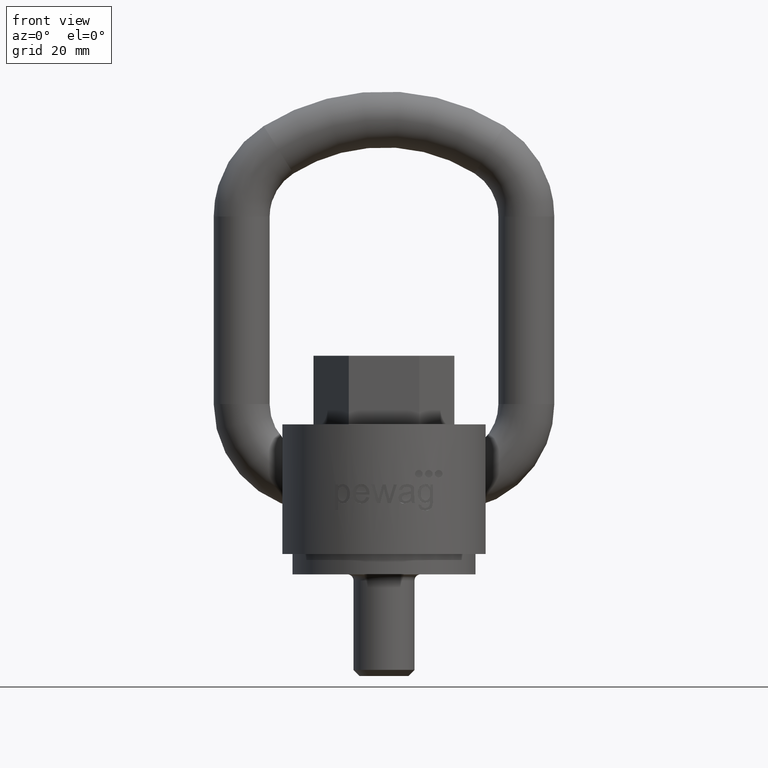
[diagram: clean part render]
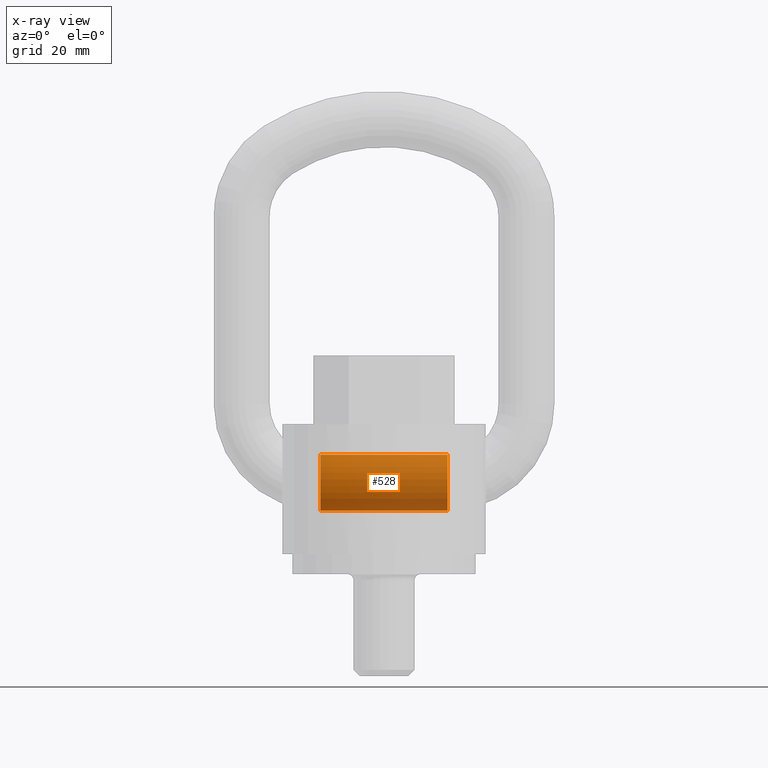
[diagram: x-ray — body ghosted, one internal face saturated and labeled with its STEP entity id]
A machine part, front view, then the same camera in x-ray: the body is ghosted and one INTERNAL B-rep face — a face not visible from any outside direction — is saturated and labeled: STEP entity #528.
In plain terms, the highlighted cylindrical surface (bore or boss wall) has radius 5.5 mm, axis along (1, 0, 0).
Its self-contained STEP definition (entity closure, byte-faithful):
#528=ADVANCED_FACE('',(#611,#612),#550,.T.);
#550=CYLINDRICAL_SURFACE('',#2538,5.5);
#611=FACE_BOUND('',#773,.T.);
#612=FACE_BOUND('',#774,.T.);
#773=EDGE_LOOP('',(#1714));
#774=EDGE_LOOP('',(#1715));
#1112=CIRCLE('',#2534,5.5);
#1114=CIRCLE('',#2537,5.5);
#1714=ORIENTED_EDGE('',*,*,#2236,.T.);
#1715=ORIENTED_EDGE('',*,*,#2234,.F.);
#1930=VERTEX_POINT('',#5179);
#1932=VERTEX_POINT('',#5184);
#2234=EDGE_CURVE('',#1930,#1930,#1112,.T.);
#2236=EDGE_CURVE('',#1932,#1932,#1114,.T.);
#2534=AXIS2_PLACEMENT_3D('',#5178,#2957,#2958);
#2537=AXIS2_PLACEMENT_3D('',#5183,#2963,#2964);
#2538=AXIS2_PLACEMENT_3D('',#5185,#2965,#2966);
#2957=DIRECTION('',(1.,0.,-1.72254642419883E-16));
#2958=DIRECTION('',(-3.1540426835942E-16,0.,-1.));
#2963=DIRECTION('',(1.,0.,-1.72254642419883E-16));
#2964=DIRECTION('',(-3.1540426835942E-16,0.,-1.));
#2965=DIRECTION('',(1.,0.,0.));
#2966=DIRECTION('',(0.,0.,-1.));
#5178=CARTESIAN_POINT('',(12.5,19.,14.));
#5179=CARTESIAN_POINT('',(12.5,19.,8.5));
#5183=CARTESIAN_POINT('',(-12.5,19.,14.));
#5184=CARTESIAN_POINT('',(-12.5,19.,8.5));
#5185=CARTESIAN_POINT('',(-12.5,19.,14.));